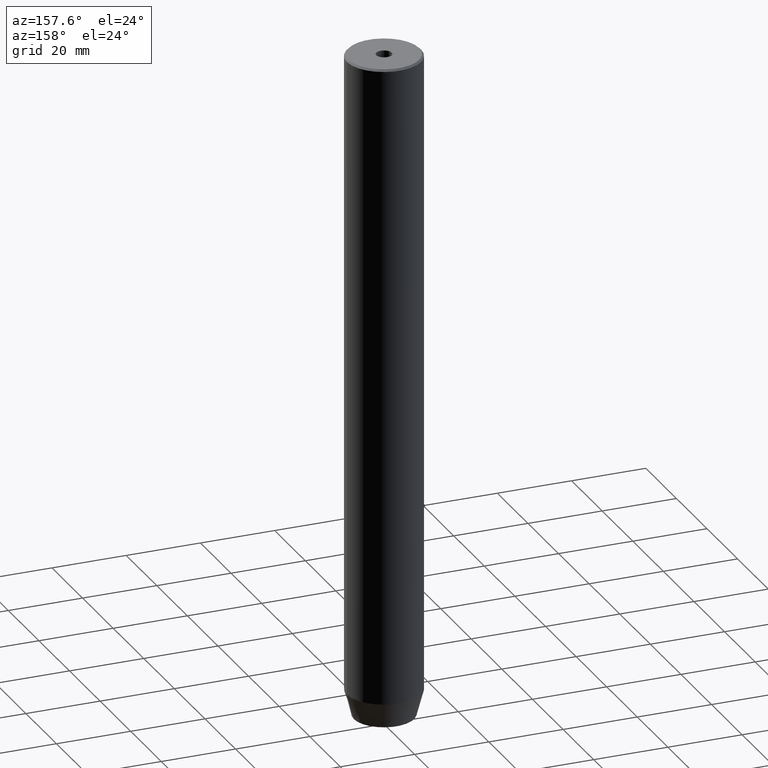
[diagram: clean part render]
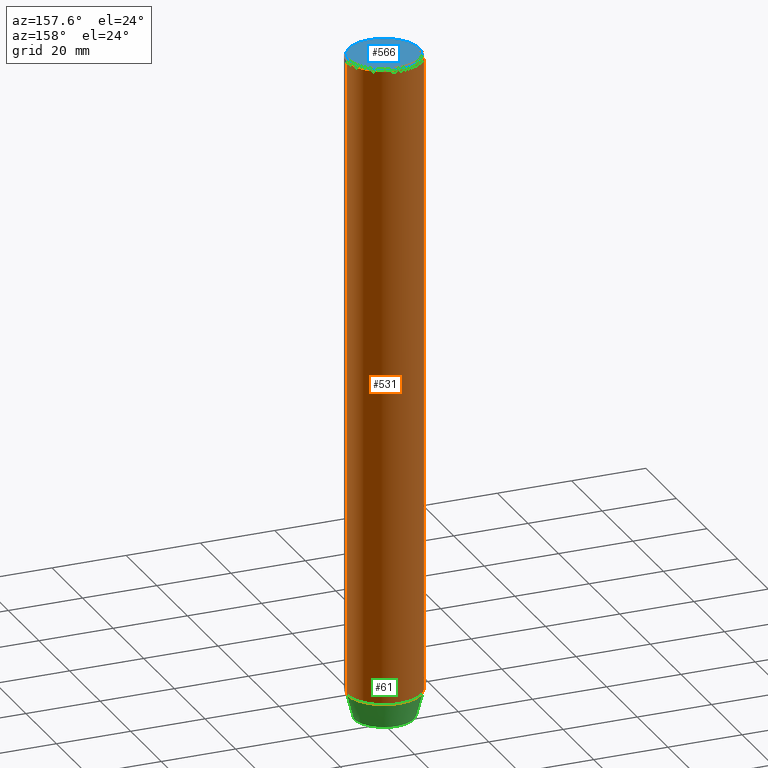
[diagram: same view with three faces highlighted in distinct colors, each labeled with its STEP entity id]
A machine part, auxiliary view with three faces highlighted in distinct colors.
Their STEP definitions:

[orange] entity #531 — the highlighted cylindrical surface (partial cylindrical patch) has radius 10 mm, axis along (-0, -0, 1).
#1 = VERTEX_POINT ( 'NONE', #112 ) ;
#7 = VERTEX_POINT ( 'NONE', #407 ) ;
#83 = CIRCLE ( 'NONE', #109, 10.00000000000000000 ) ;
#87 = EDGE_CURVE ( 'NONE', #246, #397, #323, .T. ) ;
#88 = DIRECTION ( 'NONE',  ( 1.000000000000000000, 0.000000000000000000, 0.000000000000000000 ) ) ;
#93 = EDGE_CURVE ( 'NONE', #397, #1, #368, .T. ) ;
#107 = DIRECTION ( 'NONE',  ( 1.000000000000000000, 0.000000000000000000, 0.000000000000000000 ) ) ;
#109 = AXIS2_PLACEMENT_3D ( 'NONE', #302, #505, #88 ) ;
#112 = CARTESIAN_POINT ( 'NONE',  ( 10.00000000000000000, 0.000000000000000000, -0.4999999999999987232 ) ) ;
#121 = CARTESIAN_POINT ( 'NONE',  ( -10.00000000000000000, 1.224646799147353256E-15, 0.000000000000000000 ) ) ;
#130 = DIRECTION ( 'NONE',  ( -0.000000000000000000, -0.000000000000000000, 1.000000000000000000 ) ) ;
#157 = DIRECTION ( 'NONE',  ( 0.000000000000000000, 0.000000000000000000, -1.000000000000000000 ) ) ;
#178 = CARTESIAN_POINT ( 'NONE',  ( 10.00000000000000000, 0.000000000000000000, 0.000000000000000000 ) ) ;
#217 = VECTOR ( 'NONE', #130, 1000.000000000000000 ) ;
#246 = VERTEX_POINT ( 'NONE', #350 ) ;
#253 = AXIS2_PLACEMENT_3D ( 'NONE', #285, #157, #107 ) ;
#258 = CARTESIAN_POINT ( 'NONE',  ( -10.00000000000000000, 1.224646799147353256E-15, -0.4999999999999987232 ) ) ;
#282 = FACE_OUTER_BOUND ( 'NONE', #552, .T. ) ;
#285 = CARTESIAN_POINT ( 'NONE',  ( 0.000000000000000000, 0.000000000000000000, -0.4999999999999987232 ) ) ;
#292 = ORIENTED_EDGE ( 'NONE', *, *, #309, .F. ) ;
#295 = DIRECTION ( 'NONE',  ( 1.000000000000000000, 0.000000000000000000, 0.000000000000000000 ) ) ;
#302 = CARTESIAN_POINT ( 'NONE',  ( 0.000000000000000000, 0.000000000000000000, -173.0000000000000000 ) ) ;
#309 = EDGE_CURVE ( 'NONE', #7, #1, #498, .T. ) ;
#313 = DIRECTION ( 'NONE',  ( -0.000000000000000000, -0.000000000000000000, 1.000000000000000000 ) ) ;
#323 = LINE ( 'NONE', #121, #326 ) ;
#326 = VECTOR ( 'NONE', #313, 1000.000000000000000 ) ;
#350 = CARTESIAN_POINT ( 'NONE',  ( -10.00000000000000000, 1.224646799147353256E-15, -173.0000000000000000 ) ) ;
#368 = CIRCLE ( 'NONE', #253, 10.00000000000000000 ) ;
#383 = CYLINDRICAL_SURFACE ( 'NONE', #581, 10.00000000000000000 ) ;
#397 = VERTEX_POINT ( 'NONE', #258 ) ;
#405 = DIRECTION ( 'NONE',  ( -0.000000000000000000, -0.000000000000000000, 1.000000000000000000 ) ) ;
#407 = CARTESIAN_POINT ( 'NONE',  ( 10.00000000000000000, 0.000000000000000000, -173.0000000000000000 ) ) ;
#426 = CARTESIAN_POINT ( 'NONE',  ( 0.000000000000000000, 0.000000000000000000, 0.000000000000000000 ) ) ;
#433 = EDGE_CURVE ( 'NONE', #7, #246, #83, .T. ) ;
#438 = ORIENTED_EDGE ( 'NONE', *, *, #93, .T. ) ;
#498 = LINE ( 'NONE', #178, #217 ) ;
#505 = DIRECTION ( 'NONE',  ( -0.000000000000000000, -0.000000000000000000, 1.000000000000000000 ) ) ;
#523 = ORIENTED_EDGE ( 'NONE', *, *, #433, .T. ) ;
#531 = ADVANCED_FACE ( 'NONE', ( #282 ), #383, .T. ) ;
#552 = EDGE_LOOP ( 'NONE', ( #523, #564, #438, #292 ) ) ;
#564 = ORIENTED_EDGE ( 'NONE', *, *, #87, .T. ) ;
#581 = AXIS2_PLACEMENT_3D ( 'NONE', #426, #405, #295 ) ;

[blue] entity #566 — the highlighted planar face has unit normal (0, -0, 1).
#9 = EDGE_LOOP ( 'NONE', ( #374, #303 ) ) ;
#11 = FACE_OUTER_BOUND ( 'NONE', #9, .T. ) ;
#16 = CARTESIAN_POINT ( 'NONE',  ( 0.000000000000000000, 0.000000000000000000, -1.990051048614449116E-16 ) ) ;
#26 = PLANE ( 'NONE',  #141 ) ;
#33 = DIRECTION ( 'NONE',  ( -0.000000000000000000, -0.000000000000000000, 1.000000000000000000 ) ) ;
#34 = DIRECTION ( 'NONE',  ( -0.000000000000000000, -0.000000000000000000, 1.000000000000000000 ) ) ;
#50 = EDGE_CURVE ( 'NONE', #304, #307, #266, .T. ) ;
#100 = CARTESIAN_POINT ( 'NONE',  ( -9.500000000000008882, 0.000000000000000000, 0.000000000000000000 ) ) ;
#114 = CARTESIAN_POINT ( 'NONE',  ( 0.000000000000000000, 0.000000000000000000, 0.000000000000000000 ) ) ;
#119 = EDGE_CURVE ( 'NONE', #124, #238, #340, .T. ) ;
#124 = VERTEX_POINT ( 'NONE', #100 ) ;
#141 = AXIS2_PLACEMENT_3D ( 'NONE', #308, #525, #279 ) ;
#149 = AXIS2_PLACEMENT_3D ( 'NONE', #328, #344, #188 ) ;
#185 = ORIENTED_EDGE ( 'NONE', *, *, #412, .F. ) ;
#188 = DIRECTION ( 'NONE',  ( 1.000000000000000000, 0.000000000000000000, 0.000000000000000000 ) ) ;
#202 = CARTESIAN_POINT ( 'NONE',  ( -2.099999999999998757, 2.571758278209440478E-16, -1.990051048614449116E-16 ) ) ;
#233 = DIRECTION ( 'NONE',  ( 1.000000000000000000, 0.000000000000000000, 0.000000000000000000 ) ) ;
#238 = VERTEX_POINT ( 'NONE', #429 ) ;
#266 = CIRCLE ( 'NONE', #550, 2.099999999999998757 ) ;
#279 = DIRECTION ( 'NONE',  ( 1.000000000000000000, 0.000000000000000000, 0.000000000000000000 ) ) ;
#293 = ORIENTED_EDGE ( 'NONE', *, *, #50, .F. ) ;
#303 = ORIENTED_EDGE ( 'NONE', *, *, #393, .T. ) ;
#304 = VERTEX_POINT ( 'NONE', #202 ) ;
#307 = VERTEX_POINT ( 'NONE', #529 ) ;
#308 = CARTESIAN_POINT ( 'NONE',  ( 0.000000000000000000, 0.000000000000000000, 0.000000000000000000 ) ) ;
#328 = CARTESIAN_POINT ( 'NONE',  ( 0.000000000000000000, 0.000000000000000000, 0.000000000000000000 ) ) ;
#340 = CIRCLE ( 'NONE', #149, 9.500000000000008882 ) ;
#344 = DIRECTION ( 'NONE',  ( -0.000000000000000000, -0.000000000000000000, 1.000000000000000000 ) ) ;
#363 = DIRECTION ( 'NONE',  ( 1.000000000000000000, 0.000000000000000000, 0.000000000000000000 ) ) ;
#374 = ORIENTED_EDGE ( 'NONE', *, *, #119, .T. ) ;
#379 = AXIS2_PLACEMENT_3D ( 'NONE', #114, #401, #439 ) ;
#390 = CARTESIAN_POINT ( 'NONE',  ( 0.000000000000000000, 0.000000000000000000, -1.990051048614449116E-16 ) ) ;
#393 = EDGE_CURVE ( 'NONE', #238, #124, #508, .T. ) ;
#394 = EDGE_LOOP ( 'NONE', ( #185, #293 ) ) ;
#401 = DIRECTION ( 'NONE',  ( -0.000000000000000000, -0.000000000000000000, 1.000000000000000000 ) ) ;
#412 = EDGE_CURVE ( 'NONE', #307, #304, #518, .T. ) ;
#429 = CARTESIAN_POINT ( 'NONE',  ( 9.500000000000008882, 1.194030629168669864E-15, 0.000000000000000000 ) ) ;
#439 = DIRECTION ( 'NONE',  ( 1.000000000000000000, 0.000000000000000000, 0.000000000000000000 ) ) ;
#489 = FACE_BOUND ( 'NONE', #394, .T. ) ;
#508 = CIRCLE ( 'NONE', #379, 9.500000000000008882 ) ;
#518 = CIRCLE ( 'NONE', #559, 2.099999999999998757 ) ;
#525 = DIRECTION ( 'NONE',  ( 0.000000000000000000, -0.000000000000000000, 1.000000000000000000 ) ) ;
#529 = CARTESIAN_POINT ( 'NONE',  ( 2.099999999999998757, 0.000000000000000000, -1.990051048614449116E-16 ) ) ;
#550 = AXIS2_PLACEMENT_3D ( 'NONE', #390, #34, #233 ) ;
#559 = AXIS2_PLACEMENT_3D ( 'NONE', #16, #33, #363 ) ;
#566 = ADVANCED_FACE ( 'NONE', ( #489, #11 ), #26, .T. ) ;

[green] entity #61 — the highlighted conical surface has half-angle 15 deg.
#7 = VERTEX_POINT ( 'NONE', #407 ) ;
#22 = DIRECTION ( 'NONE',  ( -0.000000000000000000, -0.000000000000000000, 1.000000000000000000 ) ) ;
#38 = CARTESIAN_POINT ( 'NONE',  ( -8.124355652982135467, 1.109796706851640556E-15, -180.0000000000000000 ) ) ;
#49 = AXIS2_PLACEMENT_3D ( 'NONE', #400, #22, #568 ) ;
#61 = ADVANCED_FACE ( 'NONE', ( #348 ), #241, .T. ) ;
#65 = DIRECTION ( 'NONE',  ( 1.000000000000000000, 0.000000000000000000, 0.000000000000000000 ) ) ;
#83 = CIRCLE ( 'NONE', #109, 10.00000000000000000 ) ;
#85 = LINE ( 'NONE', #503, #242 ) ;
#88 = DIRECTION ( 'NONE',  ( 1.000000000000000000, 0.000000000000000000, 0.000000000000000000 ) ) ;
#101 = EDGE_CURVE ( 'NONE', #524, #7, #432, .T. ) ;
#109 = AXIS2_PLACEMENT_3D ( 'NONE', #302, #505, #88 ) ;
#165 = VECTOR ( 'NONE', #338, 1000.000000000000000 ) ;
#173 = ORIENTED_EDGE ( 'NONE', *, *, #359, .T. ) ;
#174 = DIRECTION ( 'NONE',  ( -0.2588190451025213501, 3.169619151431772337E-17, 0.9659258262890680902 ) ) ;
#187 = CIRCLE ( 'NONE', #49, 8.124355652982135467 ) ;
#226 = CARTESIAN_POINT ( 'NONE',  ( 8.124355652982135467, 0.000000000000000000, -180.0000000000000000 ) ) ;
#228 = CARTESIAN_POINT ( 'NONE',  ( 10.00000000000000000, 0.000000000000000000, -173.0000000000000000 ) ) ;
#241 = CONICAL_SURFACE ( 'NONE', #403, 10.00000000000000000, 0.2617993877991500740 ) ;
#242 = VECTOR ( 'NONE', #174, 1000.000000000000000 ) ;
#246 = VERTEX_POINT ( 'NONE', #350 ) ;
#302 = CARTESIAN_POINT ( 'NONE',  ( 0.000000000000000000, 0.000000000000000000, -173.0000000000000000 ) ) ;
#338 = DIRECTION ( 'NONE',  ( 0.2588190451025213501, 0.000000000000000000, 0.9659258262890680902 ) ) ;
#345 = CARTESIAN_POINT ( 'NONE',  ( 0.000000000000000000, 0.000000000000000000, -173.0000000000000000 ) ) ;
#348 = FACE_OUTER_BOUND ( 'NONE', #466, .T. ) ;
#350 = CARTESIAN_POINT ( 'NONE',  ( -10.00000000000000000, 1.224646799147353256E-15, -173.0000000000000000 ) ) ;
#352 = VERTEX_POINT ( 'NONE', #38 ) ;
#359 = EDGE_CURVE ( 'NONE', #352, #246, #85, .T. ) ;
#400 = CARTESIAN_POINT ( 'NONE',  ( 0.000000000000000000, 0.000000000000000000, -180.0000000000000000 ) ) ;
#403 = AXIS2_PLACEMENT_3D ( 'NONE', #345, #436, #65 ) ;
#407 = CARTESIAN_POINT ( 'NONE',  ( 10.00000000000000000, 0.000000000000000000, -173.0000000000000000 ) ) ;
#432 = LINE ( 'NONE', #228, #165 ) ;
#433 = EDGE_CURVE ( 'NONE', #7, #246, #83, .T. ) ;
#436 = DIRECTION ( 'NONE',  ( -0.000000000000000000, -0.000000000000000000, 1.000000000000000000 ) ) ;
#466 = EDGE_LOOP ( 'NONE', ( #569, #173, #484, #539 ) ) ;
#484 = ORIENTED_EDGE ( 'NONE', *, *, #433, .F. ) ;
#503 = CARTESIAN_POINT ( 'NONE',  ( -10.00000000000000000, 1.224646799147353256E-15, -173.0000000000000000 ) ) ;
#505 = DIRECTION ( 'NONE',  ( -0.000000000000000000, -0.000000000000000000, 1.000000000000000000 ) ) ;
#524 = VERTEX_POINT ( 'NONE', #226 ) ;
#539 = ORIENTED_EDGE ( 'NONE', *, *, #101, .F. ) ;
#557 = EDGE_CURVE ( 'NONE', #524, #352, #187, .T. ) ;
#568 = DIRECTION ( 'NONE',  ( 1.000000000000000000, 0.000000000000000000, 0.000000000000000000 ) ) ;
#569 = ORIENTED_EDGE ( 'NONE', *, *, #557, .T. ) ;